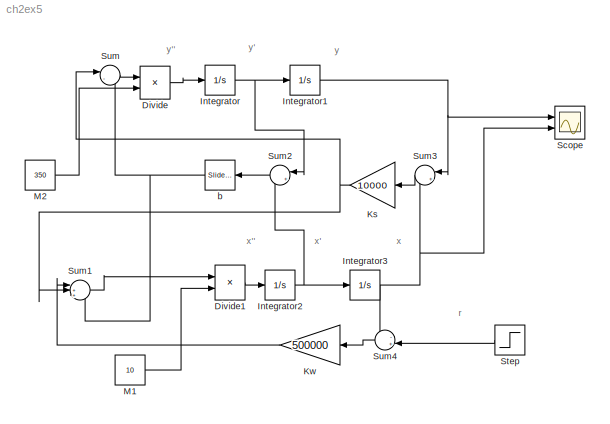
MODEL ch2ex5
KIND model
BLOCK [Product] Divide
  Inputs = */
  Ports = [2, 1]
  SID = 27
BLOCK [Product] Divide1
  Inputs = */
  Ports = [2, 1]
  SID = 29
BLOCK [Integrator] Integrator
  Ports = [1, 1]
  SID = 7
BLOCK [Integrator] Integrator1
  Ports = [1, 1]
  SID = 8
BLOCK [Integrator] Integrator2
  Ports = [1, 1]
  SID = 14
BLOCK [Integrator] Integrator3
  Ports = [1, 1]
  SID = 15
BLOCK [Gain] Ks
  Gain = 10000
  NameLocation = top
  SID = 31
BLOCK [Gain] Kw
  Gain = 500000
  NameLocation = top
  SID = 34
BLOCK [Constant] M1
  SID = 37
  SampleTime = 10
  Value = 10
BLOCK [Constant] M2
  SID = 38
  SampleTime = 10000
  Value = 350
BLOCK [Scope] Scope
  Floating = off
  NumInputPorts = 2
  Ports = [2]
  SID = 13
  ScopeSpecificationString = Simulink.scopes.TimeScopeBlockCfg('CurrentConfiguration', extmgr.ConfigurationSet(extmgr.Configuration('Core','General UI',true),extmgr.Configuration('Core','Source UI',true),extmgr.Configuration('Sources','WiredSimulink',true),extmgr.Configuration('Visuals','Time Domain',true,'SerializedDisplays',{struct('MinYLimReal','-0.37447','MaxYLimReal','3.37023','YLabelReal','','MinYLimMag','0.00000','MaxY...<+1399ch>
BLOCK [Step] Step
  After = 2
  NameLocation = top
  SID = 1
  SampleTime = 0
  Time = 2
BLOCK [Sum] Sum
  Inputs = |--
  Ports = [2, 1]
  SID = 2
BLOCK [Sum] Sum1
  Inputs = |+++
  Ports = [3, 1]
  SID = 6
BLOCK [Sum] Sum2
  Inputs = |+-
  NameLocation = top
  Ports = [2, 1]
  SID = 26
BLOCK [Sum] Sum3
  Inputs = |+-
  NameLocation = top
  Ports = [2, 1]
  SID = 35
BLOCK [Sum] Sum4
  Inputs = -+|
  NameLocation = top
  Ports = [2, 1]
  SID = 36
BLOCK [Reference] b  REF=simulink/Math\nOperations/Slider\nGain
  NameLocation = top
  Ports = [1, 1]
  RTWMemSecDataConstants = Inherit from model
  RTWMemSecDataInternal = Inherit from model
  RTWMemSecDataParameters = Inherit from model
  RTWMemSecFuncExecute = Inherit from model
  RTWMemSecFuncInitTerm = Inherit from model
  SID = 25
  SourceBlock = simulink/Math\nOperations/Slider\nGain
  SourceProductBaseCode = SL
  SourceType = Slider Gain
  gain = 1000.0
  high = 10000
  low = 0
ANNOTATION (root): r
ANNOTATION (root): x
ANNOTATION (root): x'
ANNOTATION (root): x''
ANNOTATION (root): y
ANNOTATION (root): y'
ANNOTATION (root): y''
LINE Divide1:1 -> Integrator2:1
LINE Divide:1 -> Integrator:1
NET Integrator1:1 -> Scope:1, Sum3:1
NET Integrator2:1 -> Integrator3:1, Sum2:2
NET Integrator3:1 -> Scope:2, Sum3:2, Sum4:1
NET Integrator:1 -> Integrator1:1, Sum2:1
NET Ks:1 -> Sum1:2, Sum:1
LINE Kw:1 -> Sum1:1
LINE M1:1 -> Divide1:2
LINE M2:1 -> Divide:2
LINE Step:1 -> Sum4:2
LINE Sum1:1 -> Divide1:1
LINE Sum2:1 -> b:1
LINE Sum3:1 -> Ks:1
LINE Sum4:1 -> Kw:1
LINE Sum:1 -> Divide:1
NET b:1 -> Sum1:3, Sum:2
note: NET lines group one-source signal fan-out (src -> all destinations, sorted); 1:1 wires keep LINE
